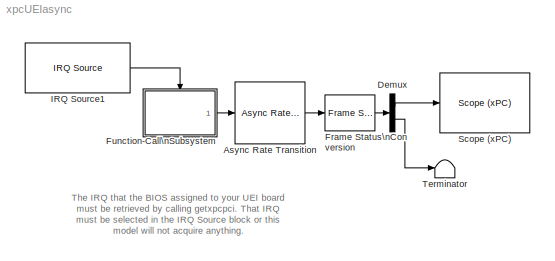
MODEL xpcUEIasync
KIND model
BLOCK [Reference] Async Rate Transition  REF=xpclib/Asynchronous\nEvent/Async Rate Transition
  Ports = [1, 1]
  ShowPortLabels = on
  SourceBlock = xpclib/Asynchronous\nEvent/Async Rate Transition
  SourceType = Rate Transition
  sample_time = -1
BLOCK [Demux] Demux
  Outputs = [5 -1]
  Ports = [1, 2]
BLOCK [Reference] Frame Status\nConversion  REF=dspsigattribs/Frame Status\nConversion
  Ports = [1, 1]
  ShowPortLabels = off
  SourceBlock = dspsigattribs/Frame Status\nConversion
  SourceType = Frame Status Conversion
  growRefPort = off
  outframe = Sample-based
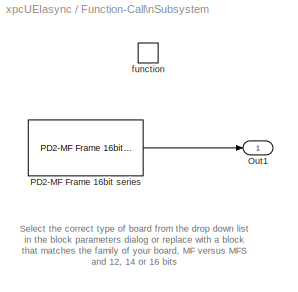
BLOCK [SubSystem] Function-Call\nSubsystem
  Ports = [0, 1, 0, 1]
  TreatAsAtomicUnit = on
BLOCK [Outport] Function-Call\nSubsystem/Out1
  BusOutputAsStruct = off
  IconDisplay = Port number
BLOCK [Reference] Function-Call\nSubsystem/PD2-MF Frame 16bit series   REF=xpclib/A//D\nFrame/UEI/PD2-MF Frame 16bit series 
  Ports = [0, 1]
  SourceBlock = xpclib/A//D\nFrame/UEI/PD2-MF Frame 16bit series
  SourceType = ueipd2mf16_ad_16
  boardtypein = PD2-MF-16-333/16H
  burst = 32
  channel = [1]
  clsource = Internal
  framesize = 32
  frametime = 0.001
  freq = -1
  gain = [1]
  mux = [0]
  outfmt = Frame (Signal Processing blockset needed)
  pcislot = -1
  range = +- 10 Volts
  sampletime = on
  scantime = -1
  sediff = Single Ended
  slave = off
BLOCK [TriggerPort] Function-Call\nSubsystem/function
  Ports = []
  TriggerType = function-call
BLOCK [Reference] IRQ Source1  REF=xpclib/Asynchronous\nEvent/IRQ Source
  Ports = [0, 1]
  SourceBlock = xpclib/Asynchronous\nEvent/IRQ Source
  SourceType = xpcinterrupt
  b_type = UEI_MFx
  irqNo = 10
  preempt = on
  slot = -1
BLOCK [Reference] Scope (xPC)   REF=xpclib/Misc./Scope (xPC) 
  Ports = [1]
  ShowPortLabels = on
  SourceBlock = xpclib/Misc./Scope (xPC)
  SourceType = xpcscopeblock
  autorestart = off
  autostart = on
  filename = data.dat
  formatstr = '%15.6f'
  grid = on
  interleave = 1
  mode = Lazy
  noprepostsamples = 0
  nosamples = 500
  scopeno = 1
  scopetype = Target
  triggerlevel = 0.0
  triggermode = FreeRun
  triggersample = 0
  triggerscope = 1
  triggersignal = 1
  triggerslope = Either
  viewmode = Graphical redraw
  writesize = 512
  ylimits = [0,0]
BLOCK [Terminator] Terminator
ANNOTATION (root): The IRQ that the BIOS assigned to your UEI board\nmust be retrieved by calling getxpcpci. That IRQ\nmust be selected in the IRQ Source block or this\nmodel will not acquire anything.
ANNOTATION Function-Call\nSubsystem: Select the correct type of board from the drop down list\nin the block parameters dialog or replace with a block\nthat matches the family of your board, MF versus MFS\nand 12, 14 or 16 bits
LINE Async Rate Transition:1 -> Frame Status\nConversion:1
LINE Demux:1 -> Scope (xPC) :1
LINE Demux:2 -> Terminator:1
LINE Frame Status\nConversion:1 -> Demux:1
LINE Function-Call\nSubsystem/PD2-MF Frame 16bit series :1 -> Function-Call\nSubsystem/Out1:1
LINE Function-Call\nSubsystem:1 -> Async Rate Transition:1
LINE IRQ Source1:1 -> Function-Call\nSubsystem:trigger
